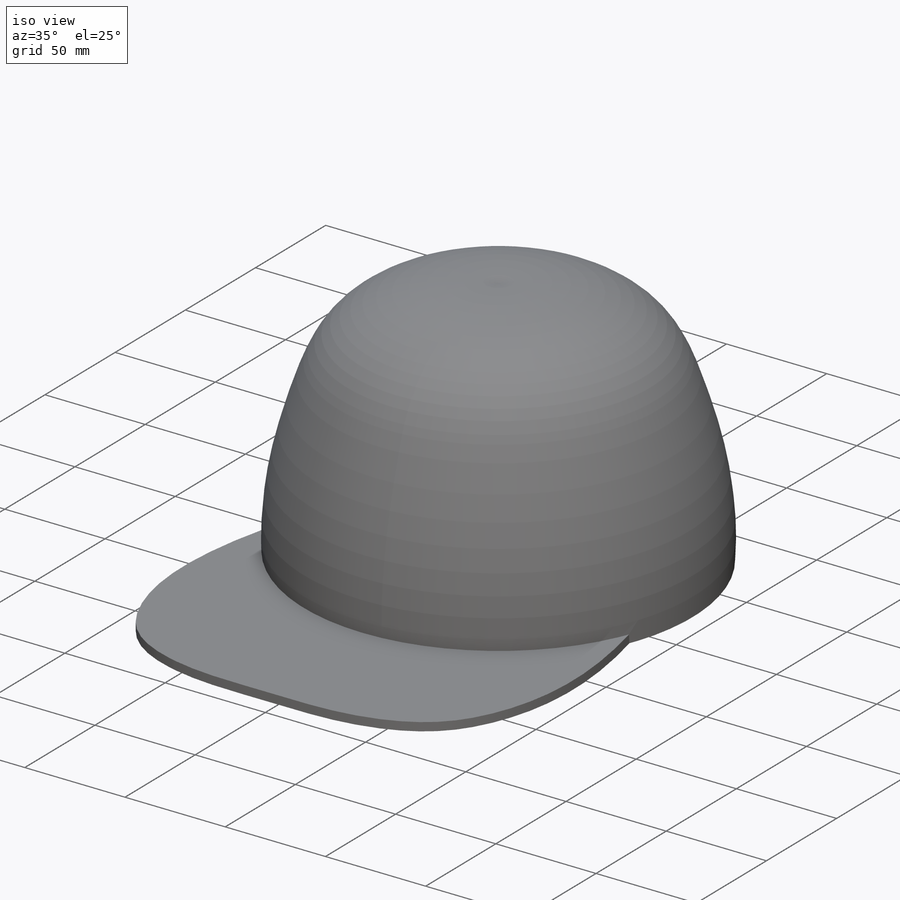
[diagram: iso view]
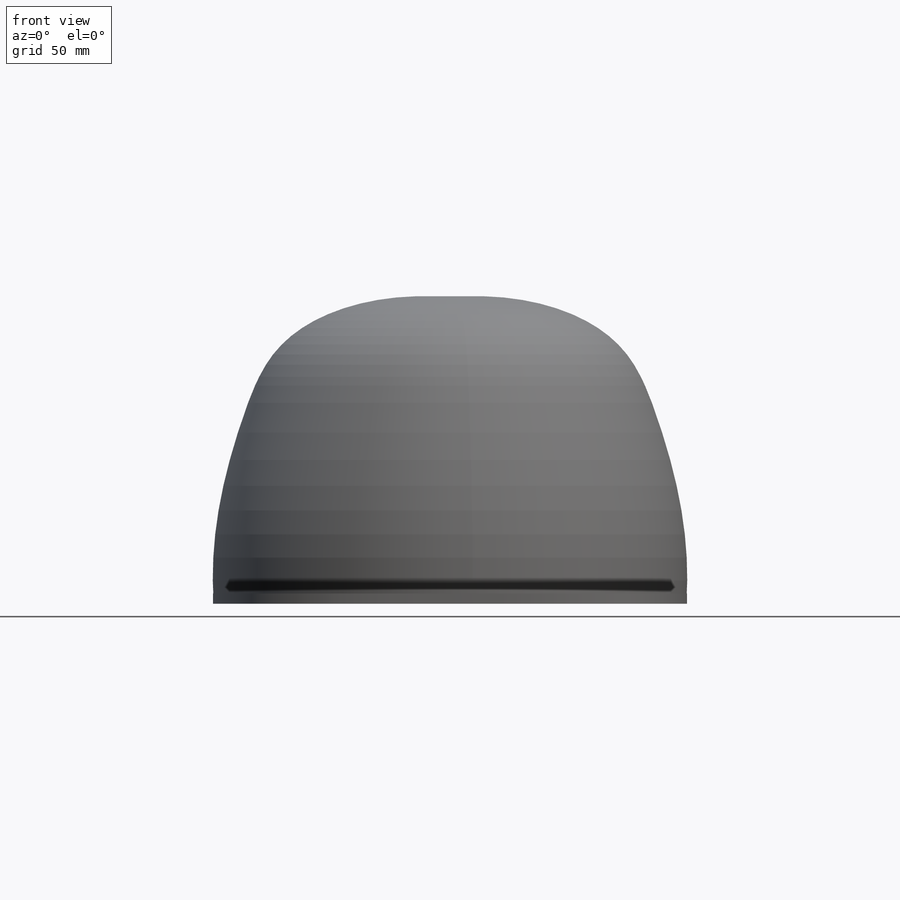
[diagram: front view]
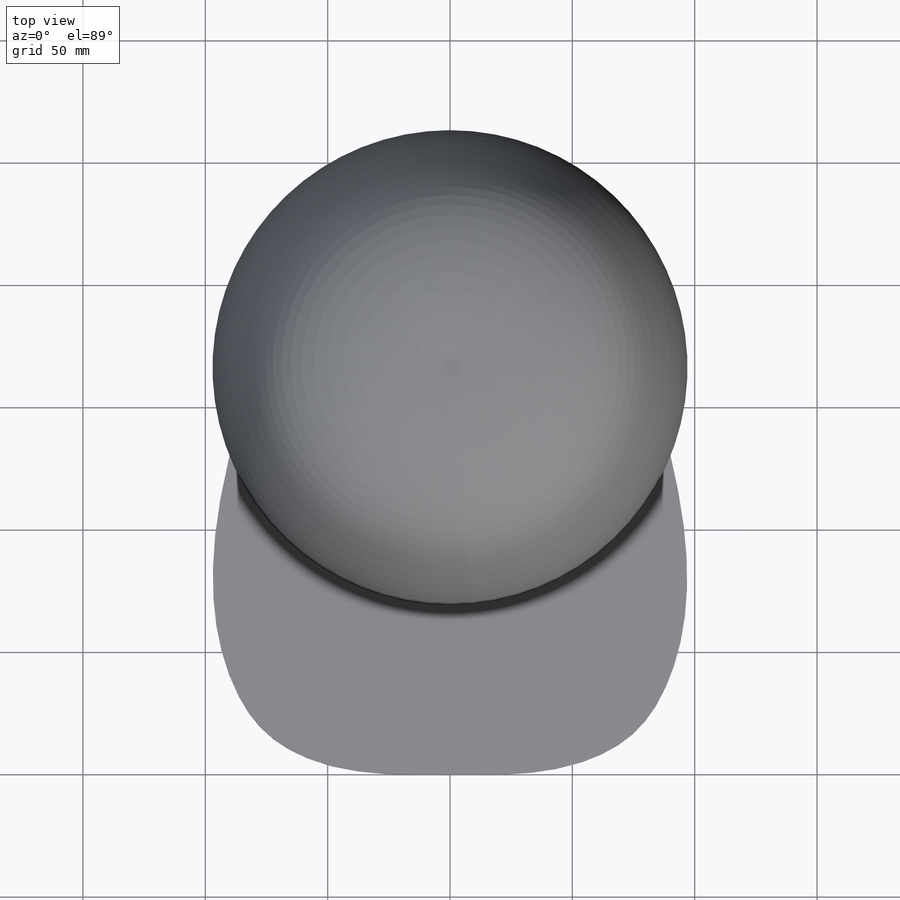
[diagram: top view]
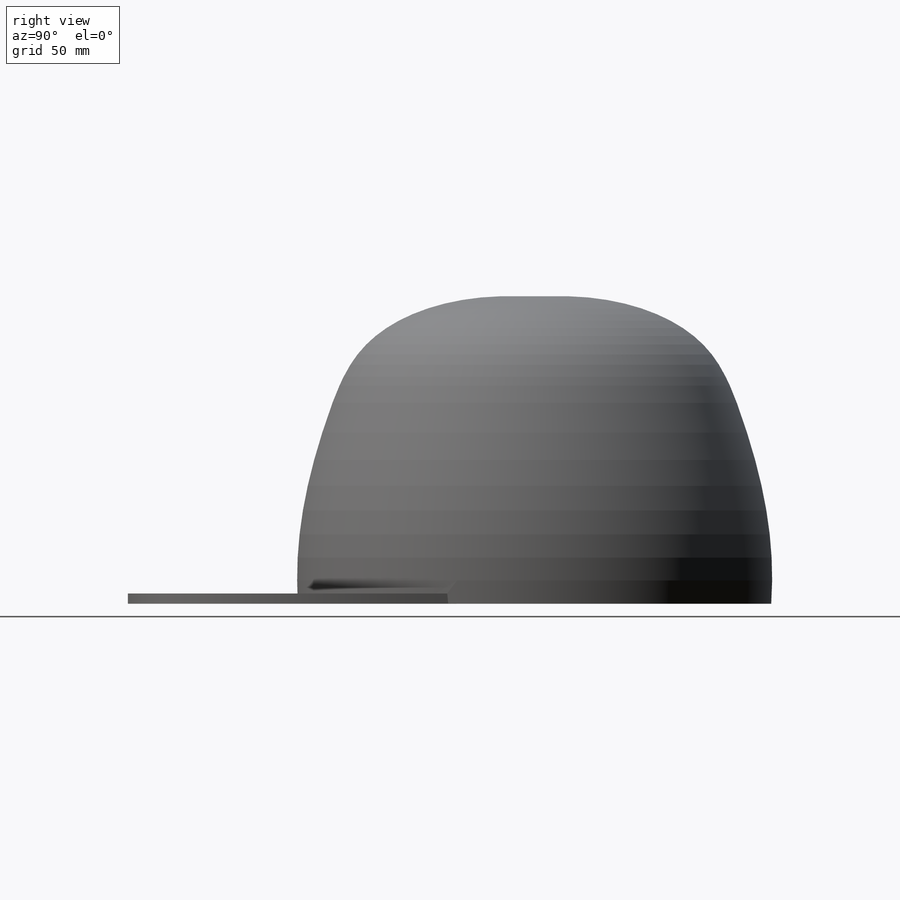
[diagram: right view]
SOLIDWORKS PART (.sldprt)
format: sldprt  version: not decoded by parser v0  size: 659,968 bytes
history: native  units: mm
features: sketch x8, material x1, extrude x1, revolve x1 (+13 scaffold rows collapsed)
feature tree (24):
  scaffold x13  (default folders/planes/origin — collapsed)
  material  "Material <not specified>"
  sketch  "Sketch1"  dims[c1.D1=69.5mm c1.D2=130.85mm c1.D3=90.0mm c1.D4=90.0mm c1.D5=140.0mm c1.D6=96.5mm c1.D7=96.5mm c1.D8=90.75mm c1.D9=20.0mm c1.D10=51.3mm c1.D11=60.0mm c1.D12=68.35mm c1.D13=69.5mm c2.D4=122.5mm c2.D14=20.0mm]
  sketch  "Sketch5"  dims[D1=2.0mm D2=2.0mm D3=2.0mm D4=2.0mm D5=2.0mm D6=2.0mm]
  sketch  "Sketch7"
  extrude  "Boss-Extrude3"  Depth=4.18mm
  sketch  "Sketch8"
  sketch  "Sketch9"  dims[D1=69.5mm D2=96.68mm D3=125.0mm D4=2.0mm D5=2.0mm D6=2.0mm D7=2.0mm D8=2.0mm D9=2.0mm]
  sketch  "Sketch10"
  revolve  "Revolve2"  Angle=360deg
  sketch  "Sketch14"
  sketch  "Sketch15"
decode coverage: 5 of 10 modeling features carry decoded parameters
note: suppression state not decoded; provenance and decode notes live in map.json
